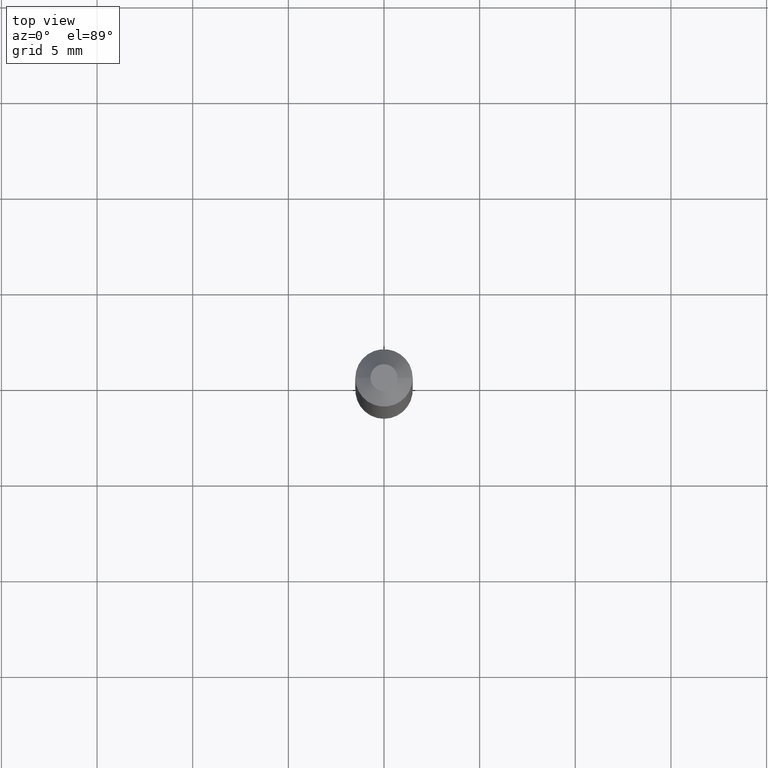
[diagram: clean part render]
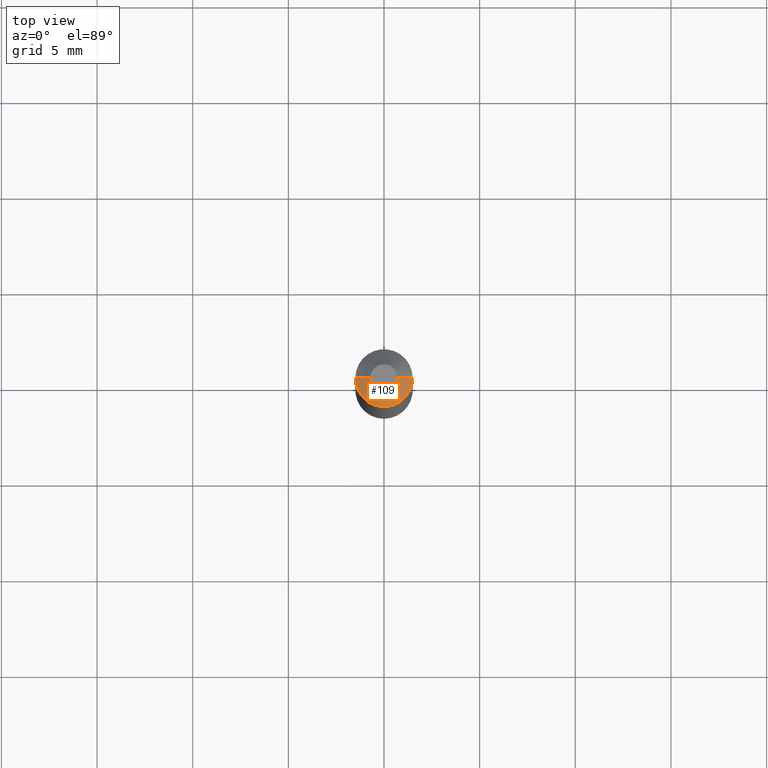
[diagram: same view with one face highlighted and labeled with its STEP entity id]
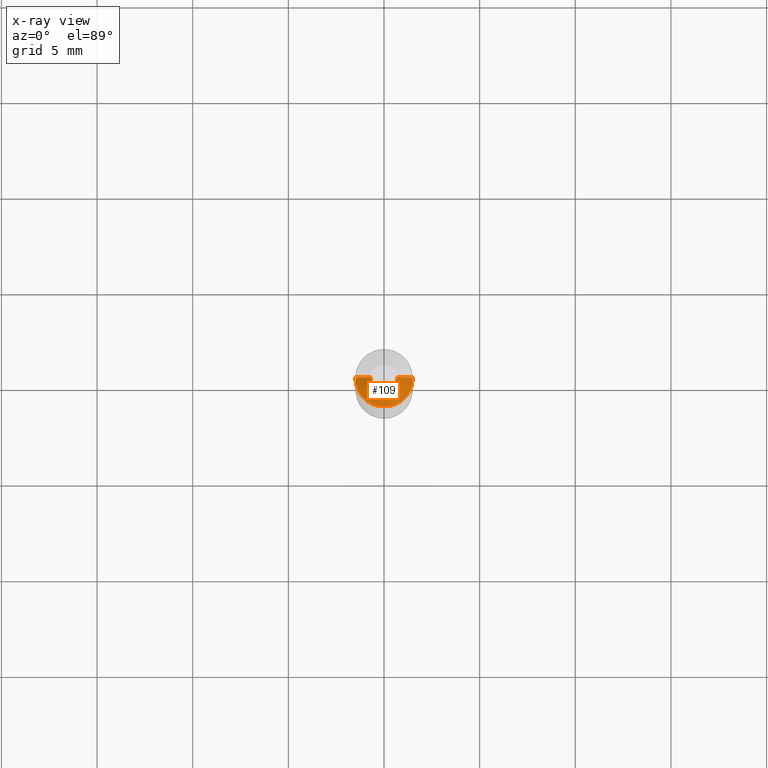
[diagram: x-ray of the same camera — body ghosted, the highlighted face saturated]
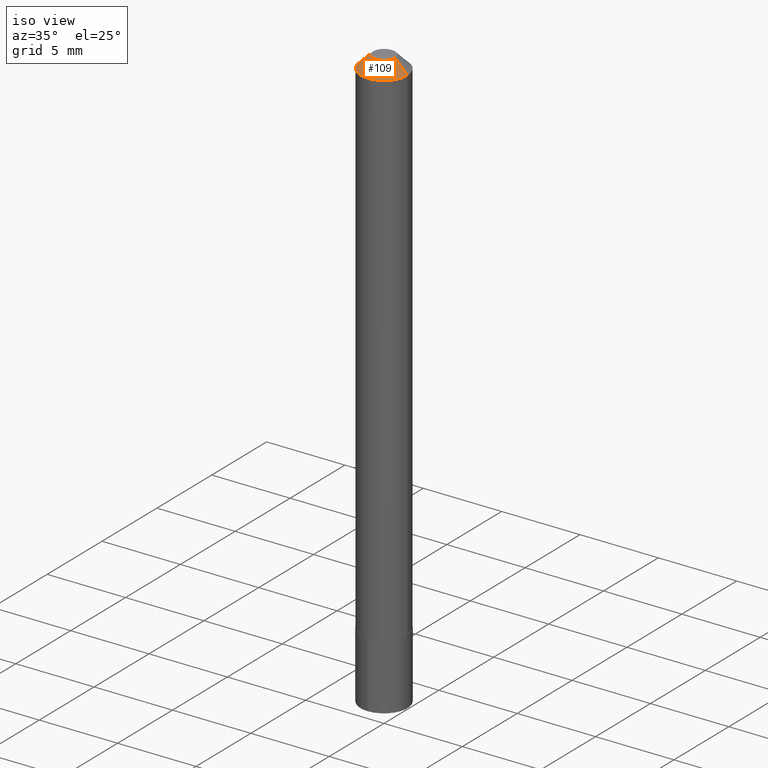
[diagram: same view with one face highlighted and labeled with its STEP entity id]
A machine part, top view. The second image highlights one B-rep face of the part: STEP entity #109.
The next image is the same camera in x-ray: the body ghosted, the highlighted face saturated — about 0% of this face is hidden behind the body in this view.
A second angle (iso view) of the same face is appended — the face is thin or edge-on in the first view.
In plain terms, the highlighted conical surface has half-angle 45 deg.
Its self-contained STEP definition (entity closure, byte-faithful):
#9 = AXIS2_PLACEMENT_3D ( 'NONE', #223, #344, #75 ) ;
#45 = CARTESIAN_POINT ( 'NONE',  ( -0.05905000000000000526, -1.902172317830880095E-15, -0.03125000000000021511 ) ) ;
#53 = EDGE_CURVE ( 'NONE', #63, #210, #248, .T. ) ;
#55 = DIRECTION ( 'NONE',  ( 1.000000000000000000, -6.982962677686266711E-15, 4.876227310796756046E-29 ) ) ;
#61 = CARTESIAN_POINT ( 'NONE',  ( 1.033218263338721736E-47, -1.475161848834461579E-33, -4.225031457058385402E-19 ) ) ;
#63 = VERTEX_POINT ( 'NONE', #45 ) ;
#71 = CONICAL_SURFACE ( 'NONE', #145, 0.05905000000000000526, 0.7853981633974449483 ) ;
#75 = DIRECTION ( 'NONE',  ( 1.000000000000000000, -6.982962677686267499E-15, 0.000000000000000000 ) ) ;
#78 = AXIS2_PLACEMENT_3D ( 'NONE', #61, #79, #55 ) ;
#79 = DIRECTION ( 'NONE',  ( -2.445468806185136597E-29, 3.491481338843145583E-15, 1.000000000000000000 ) ) ;
#90 = CARTESIAN_POINT ( 'NONE',  ( 0.05905000000000000526, -5.142211986072580675E-16, -0.03125000000000021511 ) ) ;
#109 = ADVANCED_FACE ( 'NONE', ( #203 ), #71, .T. ) ;
#112 = DIRECTION ( 'NONE',  ( -0.7071067811865451302, 2.468850131082231817E-15, -0.7071067811865499042 ) ) ;
#124 = VECTOR ( 'NONE', #112, 39.37007874015748143 ) ;
#133 = ORIENTED_EDGE ( 'NONE', *, *, #356, .T. ) ;
#136 = EDGE_CURVE ( 'NONE', #361, #210, #383, .T. ) ;
#141 = LINE ( 'NONE', #173, #124 ) ;
#145 = AXIS2_PLACEMENT_3D ( 'NONE', #175, #259, #180 ) ;
#156 = CARTESIAN_POINT ( 'NONE',  ( 0.05905000000000000526, -5.214527379562231333E-16, -0.03125000000000021511 ) ) ;
#171 = CIRCLE ( 'NONE', #78, 0.02779999999999999832 ) ;
#173 = CARTESIAN_POINT ( 'NONE',  ( -0.05905000000000000526, 3.032351542785250307E-16, -0.03125000000000021511 ) ) ;
#175 = CARTESIAN_POINT ( 'NONE',  ( 7.642090019328604414E-31, -1.091087918388490513E-16, -0.03125000000000021511 ) ) ;
#180 = DIRECTION ( 'NONE',  ( -1.000000000000000000, 6.982962677686267499E-15, 0.000000000000000000 ) ) ;
#188 = VECTOR ( 'NONE', #299, 39.37007874015748143 ) ;
#203 = FACE_OUTER_BOUND ( 'NONE', #302, .T. ) ;
#210 = VERTEX_POINT ( 'NONE', #156 ) ;
#223 = CARTESIAN_POINT ( 'NONE',  ( 7.642090019328604414E-31, -1.091087918388490513E-16, -0.03125000000000021511 ) ) ;
#248 = CIRCLE ( 'NONE', #9, 0.05905000000000000526 ) ;
#258 = CARTESIAN_POINT ( 'NONE',  ( 0.02779999999999999832, -3.524715214726533365E-16, -4.225031457039280658E-19 ) ) ;
#259 = DIRECTION ( 'NONE',  ( 2.445468806185136597E-29, -3.491481338843145583E-15, -1.000000000000000000 ) ) ;
#299 = DIRECTION ( 'NONE',  ( 0.7071067811865451302, -7.319954787623248157E-15, -0.7071067811865499042 ) ) ;
#300 = ORIENTED_EDGE ( 'NONE', *, *, #136, .F. ) ;
#302 = EDGE_LOOP ( 'NONE', ( #300, #326, #133, #390 ) ) ;
#326 = ORIENTED_EDGE ( 'NONE', *, *, #385, .F. ) ;
#344 = DIRECTION ( 'NONE',  ( -2.445468806185136597E-29, 3.491481338843145583E-15, 1.000000000000000000 ) ) ;
#356 = EDGE_CURVE ( 'NONE', #384, #63, #141, .T. ) ;
#361 = VERTEX_POINT ( 'NONE', #258 ) ;
#375 = CARTESIAN_POINT ( 'NONE',  ( -0.02779999999999999832, 2.486807583591016636E-16, -4.225031457073866508E-19 ) ) ;
#383 = LINE ( 'NONE', #90, #188 ) ;
#384 = VERTEX_POINT ( 'NONE', #375 ) ;
#385 = EDGE_CURVE ( 'NONE', #384, #361, #171, .T. ) ;
#390 = ORIENTED_EDGE ( 'NONE', *, *, #53, .T. ) ;